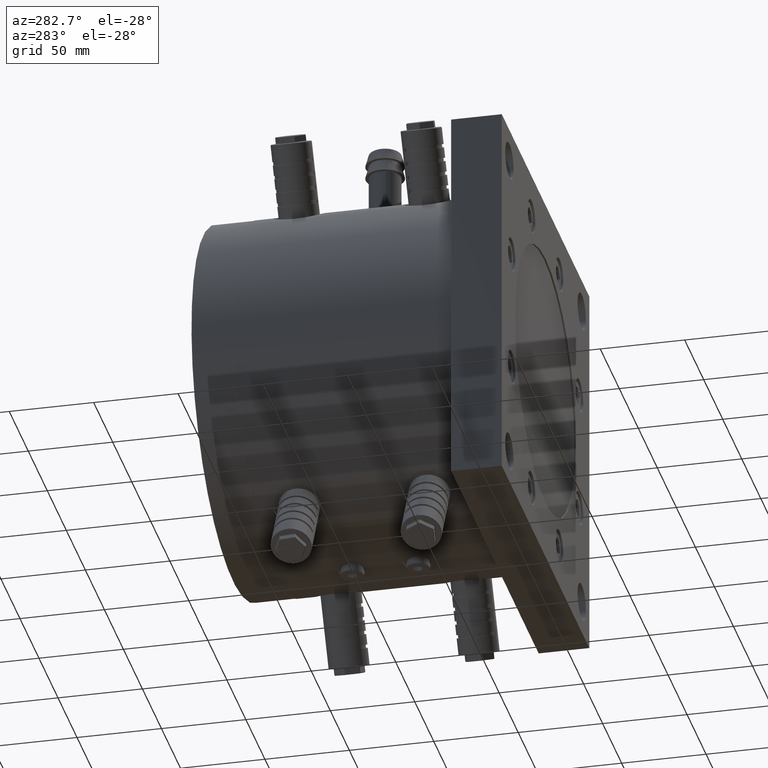
[diagram: clean part render]
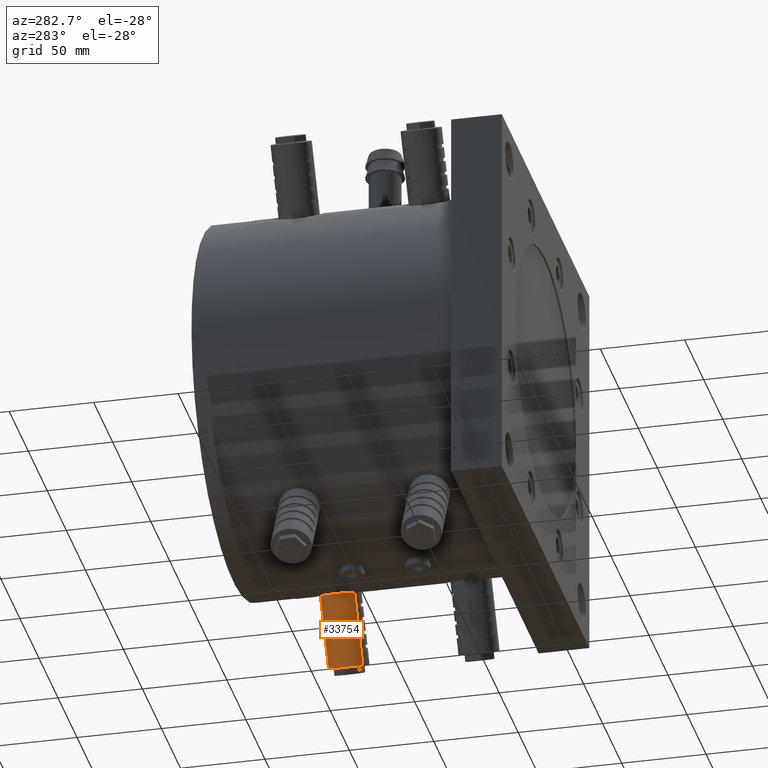
[diagram: same view with one face highlighted and labeled with its STEP entity id]
A machine part, auxiliary view. The second image highlights one B-rep face of the part: STEP entity #33754.
In plain terms, the highlighted cylindrical surface (edge-blend (fillet) strip) has radius 12 mm, axis along (-0.5, 0, 0.866).
Its self-contained STEP definition (entity closure, byte-faithful):
#61 = CARTESIAN_POINT ( 'NONE',  ( 55.94760854364710000, 123.9585212934320000, -111.4588501750330100 ) ) ;
#346 = VERTEX_POINT ( 'NONE', #18262 ) ;
#489 = ORIENTED_EDGE ( 'NONE', *, *, #46053, .F. ) ;
#1244 = CARTESIAN_POINT ( 'NONE',  ( 73.55239145634850200, 143.0414787065680000, -112.8417294051525900 ) ) ;
#1507 = EDGE_CURVE ( 'NONE', #46428, #44479, #62361, .T. ) ;
#1690 = CARTESIAN_POINT ( 'NONE',  ( 77.55239145634840300, 143.0414787065680000, -119.7699326354279900 ) ) ;
#1778 = EDGE_CURVE ( 'NONE', #346, #33782, #69476, .T. ) ;
#1836 = LINE ( 'NONE', #55389, #69910 ) ;
#2008 = VERTEX_POINT ( 'NONE', #60849 ) ;
#2572 = CARTESIAN_POINT ( 'NONE',  ( 82.55239145634826100, 143.0414787065680000, -128.4301866732726000 ) ) ;
#2819 = CARTESIAN_POINT ( 'NONE',  ( 63.94760854364690800, 123.9585212934320000, -125.3152566355840200 ) ) ;
#2962 = EDGE_CURVE ( 'NONE', #2008, #65840, #33943, .T. ) ;
#3035 = DIRECTION ( 'NONE',  ( 0.4999999999999877900, -1.387778780781445500E-017, -0.8660254037844457000 ) ) ;
#3273 = CARTESIAN_POINT ( 'NONE',  ( 69.94760854364675100, 123.9585212934320100, -135.7075614809973800 ) ) ;
#3551 = ORIENTED_EDGE ( 'NONE', *, *, #41998, .T. ) ;
#4796 = AXIS2_PLACEMENT_3D ( 'NONE', #44164, #66630, #60665 ) ;
#4838 = CARTESIAN_POINT ( 'NONE',  ( 69.94760854364679400, 123.9585212934320000, -135.7075614809974100 ) ) ;
#4961 = DIRECTION ( 'NONE',  ( -0.5251992880292291100, -0.7951232255473321700, -0.3032239503218656100 ) ) ;
#5211 = VECTOR ( 'NONE', #55909, 1000.000000000000100 ) ;
#6847 = DIRECTION ( 'NONE',  ( 0.4999999999999877900, -1.387778780781445500E-017, -0.8660254037844457000 ) ) ;
#7368 = ORIENTED_EDGE ( 'NONE', *, *, #32473, .T. ) ;
#10030 = CARTESIAN_POINT ( 'NONE',  ( 82.55239145634828900, 143.0414787065680000, -128.4301866732726000 ) ) ;
#10095 = ORIENTED_EDGE ( 'NONE', *, *, #69950, .F. ) ;
#10611 = VECTOR ( 'NONE', #69955, 1000.000000000000100 ) ;
#11134 = EDGE_CURVE ( 'NONE', #2008, #13466, #1836, .T. ) ;
#11513 = VECTOR ( 'NONE', #45229, 1000.000000000000100 ) ;
#12568 = DIRECTION ( 'NONE',  ( -0.4999999999999877900, 1.387778780781445500E-017, 0.8660254037844457000 ) ) ;
#12602 = EDGE_CURVE ( 'NONE', #36871, #43438, #54554, .T. ) ;
#13209 = ORIENTED_EDGE ( 'NONE', *, *, #1778, .T. ) ;
#13379 = LINE ( 'NONE', #18573, #73292 ) ;
#13466 = VERTEX_POINT ( 'NONE', #33687 ) ;
#14220 = LINE ( 'NONE', #29938, #10611 ) ;
#14576 = CIRCLE ( 'NONE', #4796, 12.00000000000000000 ) ;
#14852 = VECTOR ( 'NONE', #29756, 1000.000000000000100 ) ;
#15737 = DIRECTION ( 'NONE',  ( -0.4999999999999877900, 1.387778780781445500E-017, 0.8660254037844457000 ) ) ;
#15754 = DIRECTION ( 'NONE',  ( -0.4999999999999878400, 1.387778780781445700E-017, 0.8660254037844457000 ) ) ;
#16005 = CARTESIAN_POINT ( 'NONE',  ( 48.19760854364727000, 123.9585212934320100, -98.03545641637398900 ) ) ;
#16023 = VERTEX_POINT ( 'NONE', #49297 ) ;
#17009 = EDGE_CURVE ( 'NONE', #44479, #62421, #46300, .T. ) ;
#17156 = ORIENTED_EDGE ( 'NONE', *, *, #1507, .F. ) ;
#18262 = CARTESIAN_POINT ( 'NONE',  ( 51.94760854364719900, 123.9585212934320000, -104.5306469447571900 ) ) ;
#18573 = CARTESIAN_POINT ( 'NONE',  ( 82.55239145634826100, 143.0414787065680000, -128.4301866732726000 ) ) ;
#20788 = CARTESIAN_POINT ( 'NONE',  ( 72.55239145634848800, 143.0414787065680000, -111.1096785975836000 ) ) ;
#20931 = EDGE_LOOP ( 'NONE', ( #36429, #36148, #3551, #73760, #71843, #29924, #42106, #10095, #43366, #25489, #13209, #70748, #489, #7368, #41714, #32549, #22366, #73055, #63074, #17156 ) ) ;
#22366 = ORIENTED_EDGE ( 'NONE', *, *, #42526, .F. ) ;
#22628 = LINE ( 'NONE', #2572, #29831 ) ;
#23901 = CARTESIAN_POINT ( 'NONE',  ( 69.94760854364679400, 123.9585212934320000, -135.7075614809974100 ) ) ;
#23965 = CARTESIAN_POINT ( 'NONE',  ( 69.94760854364675100, 123.9585212934320100, -135.7075614809973800 ) ) ;
#24017 = CARTESIAN_POINT ( 'NONE',  ( 82.55239145634826100, 143.0414787065680000, -128.4301866732726000 ) ) ;
#24273 = CARTESIAN_POINT ( 'NONE',  ( 82.55239145634828900, 143.0414787065680000, -128.4301866732726000 ) ) ;
#24352 = DIRECTION ( 'NONE',  ( -0.4999999999999877900, 1.387778780781445500E-017, 0.8660254037844457000 ) ) ;
#24557 = CARTESIAN_POINT ( 'NONE',  ( 54.49999999999800300, 133.5000000000000000, -94.39676901251161200 ) ) ;
#24558 = LINE ( 'NONE', #3273, #30791 ) ;
#24726 = AXIS2_PLACEMENT_3D ( 'NONE', #24557, #31045, #35844 ) ;
#25489 = ORIENTED_EDGE ( 'NONE', *, *, #46743, .T. ) ;
#26035 = VERTEX_POINT ( 'NONE', #46173 ) ;
#26066 = VERTEX_POINT ( 'NONE', #61 ) ;
#26363 = VERTEX_POINT ( 'NONE', #20788 ) ;
#29504 = CARTESIAN_POINT ( 'NONE',  ( 69.94760854364679400, 123.9585212934320000, -135.7075614809974100 ) ) ;
#29756 = DIRECTION ( 'NONE',  ( -0.4999999999999877900, 1.387778780781445500E-017, 0.8660254037844457000 ) ) ;
#29831 = VECTOR ( 'NONE', #42698, 1000.000000000000100 ) ;
#29924 = ORIENTED_EDGE ( 'NONE', *, *, #11134, .F. ) ;
#29938 = CARTESIAN_POINT ( 'NONE',  ( 82.55239145634826100, 143.0414787065680000, -128.4301866732726000 ) ) ;
#30730 = EDGE_CURVE ( 'NONE', #52298, #13466, #52866, .T. ) ;
#30791 = VECTOR ( 'NONE', #15737, 1000.000000000000100 ) ;
#31045 = DIRECTION ( 'NONE',  ( 0.4999999999999878400, -1.387778780781445700E-017, -0.8660254037844457000 ) ) ;
#31148 = CIRCLE ( 'NONE', #24726, 12.00000000000000400 ) ;
#31212 = VECTOR ( 'NONE', #41497, 1000.000000000000100 ) ;
#32473 = EDGE_CURVE ( 'NONE', #69526, #16023, #59911, .T. ) ;
#32549 = ORIENTED_EDGE ( 'NONE', *, *, #12602, .F. ) ;
#33687 = CARTESIAN_POINT ( 'NONE',  ( 60.94760854364700000, 123.9585212934320000, -120.1191042128771900 ) ) ;
#33754 = ADVANCED_FACE ( 'NONE', ( #59767 ), #48148, .T. ) ;
#33782 = VERTEX_POINT ( 'NONE', #16005 ) ;
#33832 = VECTOR ( 'NONE', #6847, 1000.000000000000100 ) ;
#33916 = CARTESIAN_POINT ( 'NONE',  ( 56.94760854364710700, 123.9585212934320000, -113.1909009826018000 ) ) ;
#33943 = LINE ( 'NONE', #68417, #11513 ) ;
#34389 = LINE ( 'NONE', #60145, #63991 ) ;
#35601 = DIRECTION ( 'NONE',  ( -0.4999999999999877900, 1.387778780781445500E-017, 0.8660254037844457000 ) ) ;
#35665 = LINE ( 'NONE', #23901, #33832 ) ;
#35844 = DIRECTION ( 'NONE',  ( 0.5251992880292287700, 0.7951232255473323900, 0.3032239503218657200 ) ) ;
#36148 = ORIENTED_EDGE ( 'NONE', *, *, #40492, .T. ) ;
#36429 = ORIENTED_EDGE ( 'NONE', *, *, #40469, .F. ) ;
#36871 = VERTEX_POINT ( 'NONE', #44210 ) ;
#37394 = CARTESIAN_POINT ( 'NONE',  ( 76.24999999999749900, 133.5000000000000000, -132.0688740771350100 ) ) ;
#37891 = LINE ( 'NONE', #29504, #49518 ) ;
#39643 = DIRECTION ( 'NONE',  ( -0.4999999999999877900, 1.387778780781445500E-017, 0.8660254037844457000 ) ) ;
#40469 = EDGE_CURVE ( 'NONE', #67231, #46428, #22628, .T. ) ;
#40492 = EDGE_CURVE ( 'NONE', #67231, #58509, #14576, .T. ) ;
#41497 = DIRECTION ( 'NONE',  ( -0.4999999999999877900, 1.387778780781445500E-017, 0.8660254037844457000 ) ) ;
#41524 = CARTESIAN_POINT ( 'NONE',  ( 64.94760854364690800, 123.9585212934320000, -127.0473074431530200 ) ) ;
#41714 = ORIENTED_EDGE ( 'NONE', *, *, #63868, .F. ) ;
#41998 = EDGE_CURVE ( 'NONE', #58509, #43228, #49325, .T. ) ;
#42106 = ORIENTED_EDGE ( 'NONE', *, *, #2962, .T. ) ;
#42526 = EDGE_CURVE ( 'NONE', #26363, #36871, #13379, .T. ) ;
#42698 = DIRECTION ( 'NONE',  ( -0.4999999999999877900, 1.387778780781445500E-017, 0.8660254037844457000 ) ) ;
#43228 = VERTEX_POINT ( 'NONE', #41524 ) ;
#43366 = ORIENTED_EDGE ( 'NONE', *, *, #68253, .T. ) ;
#43438 = VERTEX_POINT ( 'NONE', #57937 ) ;
#44003 = EDGE_CURVE ( 'NONE', #33782, #26035, #31148, .T. ) ;
#44164 = CARTESIAN_POINT ( 'NONE',  ( 75.99999999999749900, 133.5000000000000000, -131.6358613752428000 ) ) ;
#44210 = CARTESIAN_POINT ( 'NONE',  ( 69.55239145634860200, 143.0414787065680000, -105.9135261748769900 ) ) ;
#44479 = VERTEX_POINT ( 'NONE', #69716 ) ;
#44993 = DIRECTION ( 'NONE',  ( -0.4999999999999877900, 1.387778780781445500E-017, 0.8660254037844457000 ) ) ;
#45229 = DIRECTION ( 'NONE',  ( -0.4999999999999877900, 1.387778780781445500E-017, 0.8660254037844457000 ) ) ;
#46038 = DIRECTION ( 'NONE',  ( -0.4999999999999877900, 1.387778780781445500E-017, 0.8660254037844457000 ) ) ;
#46053 = EDGE_CURVE ( 'NONE', #69526, #26035, #34389, .T. ) ;
#46173 = CARTESIAN_POINT ( 'NONE',  ( 60.80239145634877200, 143.0414787065680000, -90.75808160864920600 ) ) ;
#46300 = LINE ( 'NONE', #24017, #49015 ) ;
#46428 = VERTEX_POINT ( 'NONE', #1690 ) ;
#46743 = EDGE_CURVE ( 'NONE', #53886, #346, #63055, .T. ) ;
#47272 = CARTESIAN_POINT ( 'NONE',  ( 82.55239145634828900, 143.0414787065680000, -128.4301866732726000 ) ) ;
#48148 = CYLINDRICAL_SURFACE ( 'NONE', #51094, 12.00000000000000700 ) ;
#48605 = CARTESIAN_POINT ( 'NONE',  ( 52.94760854364719900, 123.9585212934320000, -106.2626977523262000 ) ) ;
#49015 = VECTOR ( 'NONE', #69011, 1000.000000000000100 ) ;
#49297 = CARTESIAN_POINT ( 'NONE',  ( 65.55239145634871500, 143.0414787065680000, -98.98532294460140700 ) ) ;
#49325 = LINE ( 'NONE', #23965, #60114 ) ;
#49518 = VECTOR ( 'NONE', #65322, 1000.000000000000100 ) ;
#50080 = DIRECTION ( 'NONE',  ( -0.4999999999999877900, 1.387778780781445500E-017, 0.8660254037844457000 ) ) ;
#50866 = LINE ( 'NONE', #47272, #31212 ) ;
#51044 = VECTOR ( 'NONE', #50080, 1000.000000000000100 ) ;
#51094 = AXIS2_PLACEMENT_3D ( 'NONE', #37394, #15754, #4961 ) ;
#52211 = VECTOR ( 'NONE', #44993, 1000.000000000000100 ) ;
#52298 = VERTEX_POINT ( 'NONE', #2819 ) ;
#52866 = LINE ( 'NONE', #72558, #51044 ) ;
#53886 = VERTEX_POINT ( 'NONE', #48605 ) ;
#54554 = LINE ( 'NONE', #74106, #60778 ) ;
#55389 = CARTESIAN_POINT ( 'NONE',  ( 69.94760854364679400, 123.9585212934320000, -135.7075614809974100 ) ) ;
#55909 = DIRECTION ( 'NONE',  ( 0.4999999999999877900, -1.387778780781445500E-017, -0.8660254037844457000 ) ) ;
#56675 = CARTESIAN_POINT ( 'NONE',  ( 64.55239145634871500, 143.0414787065680000, -97.25327213703249600 ) ) ;
#57724 = EDGE_CURVE ( 'NONE', #52298, #43228, #35665, .T. ) ;
#57937 = CARTESIAN_POINT ( 'NONE',  ( 68.55239145634860200, 143.0414787065680000, -104.1814753673080100 ) ) ;
#58185 = CARTESIAN_POINT ( 'NONE',  ( 69.94760854364675100, 123.9585212934320100, -135.7075614809973800 ) ) ;
#58509 = VERTEX_POINT ( 'NONE', #72510 ) ;
#59767 = FACE_OUTER_BOUND ( 'NONE', #20931, .T. ) ;
#59911 = LINE ( 'NONE', #10030, #5211 ) ;
#60114 = VECTOR ( 'NONE', #46038, 1000.000000000000100 ) ;
#60145 = CARTESIAN_POINT ( 'NONE',  ( 82.55239145634826100, 143.0414787065680000, -128.4301866732726000 ) ) ;
#60665 = DIRECTION ( 'NONE',  ( 0.5251992880292283300, 0.7951232255473326100, 0.3032239503218658300 ) ) ;
#60778 = VECTOR ( 'NONE', #39643, 1000.000000000000100 ) ;
#60849 = CARTESIAN_POINT ( 'NONE',  ( 59.94760854364700000, 123.9585212934320000, -118.3870534053084100 ) ) ;
#62361 = LINE ( 'NONE', #24273, #14852 ) ;
#62421 = VERTEX_POINT ( 'NONE', #1244 ) ;
#63055 = LINE ( 'NONE', #4838, #52211 ) ;
#63074 = ORIENTED_EDGE ( 'NONE', *, *, #17009, .F. ) ;
#63210 = CARTESIAN_POINT ( 'NONE',  ( 82.30239145634826100, 143.0414787065680000, -127.9971739713804100 ) ) ;
#63868 = EDGE_CURVE ( 'NONE', #43438, #16023, #14220, .T. ) ;
#63991 = VECTOR ( 'NONE', #35601, 1000.000000000000100 ) ;
#65322 = DIRECTION ( 'NONE',  ( 0.4999999999999877900, -1.387778780781445500E-017, -0.8660254037844457000 ) ) ;
#65840 = VERTEX_POINT ( 'NONE', #33916 ) ;
#66630 = DIRECTION ( 'NONE',  ( -0.4999999999999878400, 1.387778780781445700E-017, 0.8660254037844457000 ) ) ;
#66777 = VECTOR ( 'NONE', #24352, 1000.000000000000100 ) ;
#67231 = VERTEX_POINT ( 'NONE', #63210 ) ;
#68253 = EDGE_CURVE ( 'NONE', #26066, #53886, #24558, .T. ) ;
#68417 = CARTESIAN_POINT ( 'NONE',  ( 69.94760854364675100, 123.9585212934320100, -135.7075614809973800 ) ) ;
#69011 = DIRECTION ( 'NONE',  ( -0.4999999999999877900, 1.387778780781445500E-017, 0.8660254037844457000 ) ) ;
#69476 = LINE ( 'NONE', #58185, #66777 ) ;
#69526 = VERTEX_POINT ( 'NONE', #56675 ) ;
#69716 = CARTESIAN_POINT ( 'NONE',  ( 76.55239145634840300, 143.0414787065680000, -118.0378818278592000 ) ) ;
#69910 = VECTOR ( 'NONE', #3035, 1000.000000000000100 ) ;
#69950 = EDGE_CURVE ( 'NONE', #26066, #65840, #37891, .T. ) ;
#69955 = DIRECTION ( 'NONE',  ( -0.4999999999999877900, 1.387778780781445500E-017, 0.8660254037844457000 ) ) ;
#70748 = ORIENTED_EDGE ( 'NONE', *, *, #44003, .T. ) ;
#71843 = ORIENTED_EDGE ( 'NONE', *, *, #30730, .T. ) ;
#72510 = CARTESIAN_POINT ( 'NONE',  ( 69.69760854364676600, 123.9585212934320100, -135.2745487791052000 ) ) ;
#72558 = CARTESIAN_POINT ( 'NONE',  ( 69.94760854364675100, 123.9585212934320100, -135.7075614809973800 ) ) ;
#73055 = ORIENTED_EDGE ( 'NONE', *, *, #73387, .F. ) ;
#73292 = VECTOR ( 'NONE', #12568, 1000.000000000000100 ) ;
#73387 = EDGE_CURVE ( 'NONE', #62421, #26363, #50866, .T. ) ;
#73760 = ORIENTED_EDGE ( 'NONE', *, *, #57724, .F. ) ;
#74106 = CARTESIAN_POINT ( 'NONE',  ( 82.55239145634828900, 143.0414787065680000, -128.4301866732726000 ) ) ;